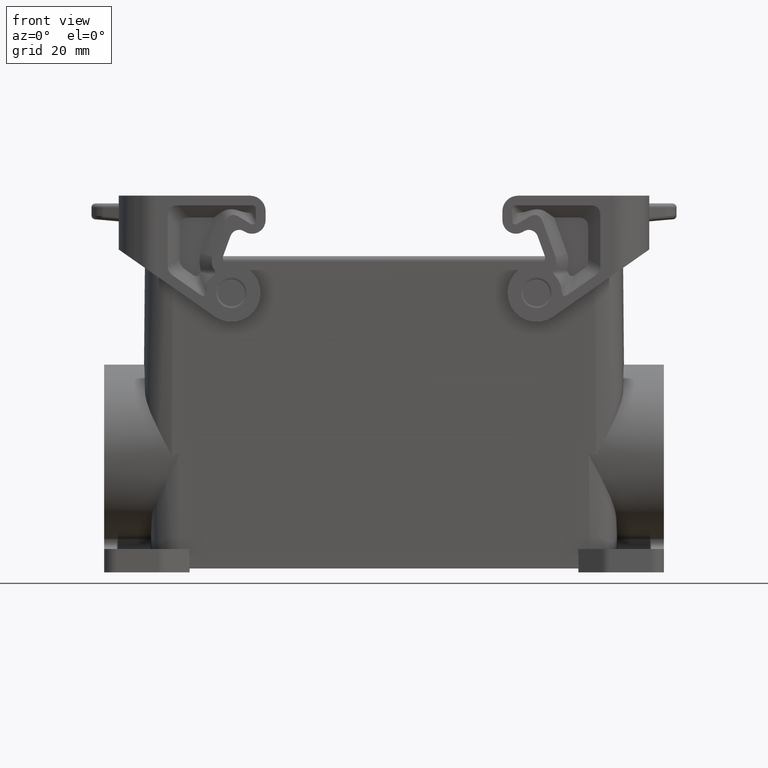
[diagram: clean part render]
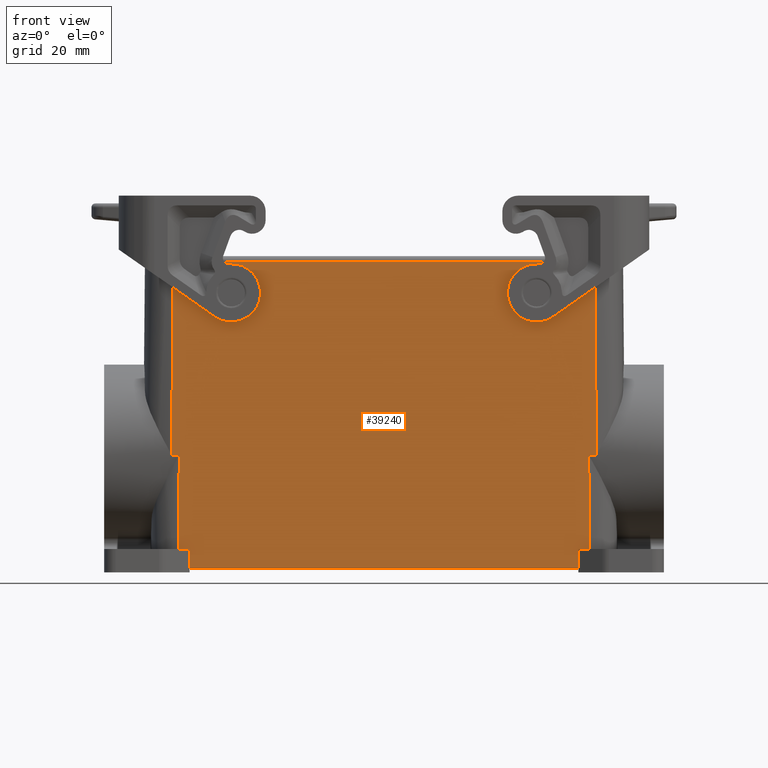
[diagram: same view with one face highlighted and labeled with its STEP entity id]
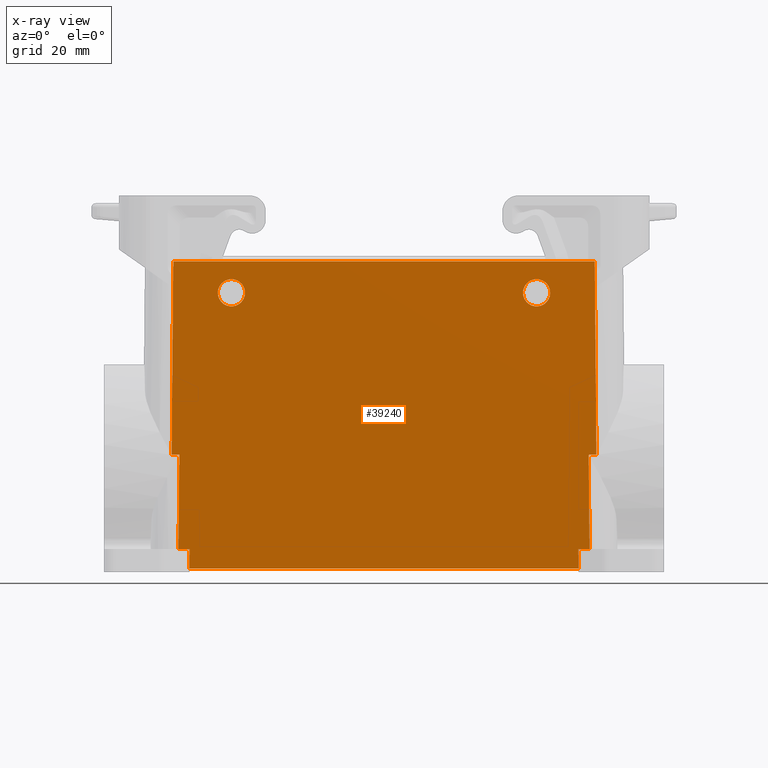
[diagram: x-ray of the same camera — body ghosted, the highlighted face saturated]
A machine part, front view. The second image highlights one B-rep face of the part: STEP entity #39240.
The next image is the same camera in x-ray: the body ghosted, the highlighted face saturated — about 0% of this face is hidden behind the body in this view.
In plain terms, the highlighted planar face has unit normal (0, -1, 0.0087).
Its self-contained STEP definition (entity closure, byte-faithful):
#6460=CARTESIAN_POINT('',(-80.8933790100085,-26.195096704881,
23.4345586552306));
#6470=VERTEX_POINT('',#6460);
#6500=CARTESIAN_POINT('',(-90.554178661523,-26.195096704881,
23.4345586552306));
#6510=DIRECTION('',(-1.,7.64440449054427E-18,3.53977484978518E-16));
#6520=VECTOR('',#6510,1.);
#6530=LINE('',#6500,#6520);
#6540=CARTESIAN_POINT('',(-78.9116760450534,-26.195096704881,
23.4345586552306));
#6550=VERTEX_POINT('',#6540);
#6560=EDGE_CURVE('',#6550,#6470,#6530,.T.);
#11030=CARTESIAN_POINT('',(26.4186720099315,-26.195096704881,
23.4345586552305));
#11040=VERTEX_POINT('',#11030);
#11070=CARTESIAN_POINT('',(24.8207373914753,-26.195096704881,
23.4345586552305));
#11080=DIRECTION('',(1.,3.10297950217462E-15,-2.06865300144974E-15));
#11090=VECTOR('',#11080,1.);
#11100=LINE('',#11070,#11090);
#11110=CARTESIAN_POINT('',(28.4003749748865,-26.195096704881,
23.4345586552305));
#11120=VERTEX_POINT('',#11110);
#11130=EDGE_CURVE('',#11040,#11120,#11100,.T.);
#34600=CARTESIAN_POINT('',(-80.4664058931541,23.600393,23.));
#34610=VERTEX_POINT('',#34600);
#35270=CARTESIAN_POINT('',(27.9734018580322,23.600393,22.9999999999998))
;
#35280=VERTEX_POINT('',#35270);
#35310=CARTESIAN_POINT('',(0.,23.600393,22.9999999999999));
#35320=DIRECTION('',(1.,0.,-1.23007290000708E-15));
#35330=VECTOR('',#35320,1.);
#35340=LINE('',#35310,#35330);
#35350=EDGE_CURVE('',#34610,#35280,#35340,.T.);
#35860=CARTESIAN_POINT('',(0.,-50.399607,23.645788216516));
#35870=DIRECTION('',(1.,-4.93056839856784E-31,-1.23007290000708E-15));
#35880=VECTOR('',#35870,1.);
#35890=LINE('',#35860,#35880);
#35900=CARTESIAN_POINT('',(23.753497982439,-50.399607,23.645788216516));
#35910=VERTEX_POINT('',#35900);
#35920=CARTESIAN_POINT('',(26.6244427383996,-50.399607,23.645788216516))
;
#35930=VERTEX_POINT('',#35920);
#35940=EDGE_CURVE('',#35910,#35930,#35890,.T.);
#37270=CARTESIAN_POINT('',(-61.996502017561,15.5003929999952,
23.0706876291051));
#37280=VERTEX_POINT('',#37270);
#37460=CARTESIAN_POINT('',(-68.996502017561,15.5003929999952,
23.0706876291051));
#37470=VERTEX_POINT('',#37460);
#37500=CARTESIAN_POINT('',(-65.496502017561,15.5003929999952,
23.0706876291051));
#37510=DIRECTION('',(1.2300260626002E-15,0.00872653549837406,
0.999961923064171));
#37520=DIRECTION('',(1.40947026136949E-13,0.999961923064171,
-0.00872653549837406));
#37530=AXIS2_PLACEMENT_3D('',#37500,#37510,#37520);
#37540=ELLIPSE('',#37530,3.50013327435008,3.5);
#37550=EDGE_CURVE('',#37280,#37470,#37540,.T.);
#38110=CARTESIAN_POINT('',(23.1253546349399,0.,23.2059575095208));
#38120=DIRECTION('',(-0.0124618165244914,0.999884274570482,
-0.00872585787023546));
#38130=VECTOR('',#38120,1.);
#38140=LINE('',#38110,#38130);
#38150=CARTESIAN_POINT('',(23.8158142766414,-55.399607,23.6894225554698)
);
#38160=VERTEX_POINT('',#38150);
#38170=EDGE_CURVE('',#38160,#35910,#38140,.T.);
#38440=CARTESIAN_POINT('',(-74.246502017561,1.60123069258823,
23.1919837809642));
#38450=DIRECTION('',(1.2300260626002E-15,0.00872653549837406,
0.999961923064171));
#38460=DIRECTION('',(1.,-1.2064528831792E-31,-1.23007290000708E-15));
#38470=AXIS2_PLACEMENT_3D('',#38440,#38450,#38460);
#38480=PLANE('',#38470);
#38490=EDGE_CURVE('',#37470,#37280,#37540,.T.);
#38500=ORIENTED_EDGE('',*,*,#38490,.F.);
#38510=ORIENTED_EDGE('',*,*,#37550,.F.);
#38520=EDGE_LOOP('',(#38510,#38500));
#38530=FACE_BOUND('',#38520,.T.);
#38540=CARTESIAN_POINT('',(13.003497982439,15.5003929999885,
23.0706876291051));
#38550=DIRECTION('',(1.2300260626002E-15,0.00872653549837406,
0.999961923064171));
#38560=DIRECTION('',(1.40947026136949E-13,0.999961923064171,
-0.00872653549837406));
#38570=AXIS2_PLACEMENT_3D('',#38540,#38550,#38560);
#38580=ELLIPSE('',#38570,3.50013327435008,3.5);
#38590=CARTESIAN_POINT('',(9.50349798243903,15.5003929999885,
23.0706876291051));
#38600=VERTEX_POINT('',#38590);
#38610=CARTESIAN_POINT('',(16.503497982439,15.5003929999885,
23.0706876291051));
#38620=VERTEX_POINT('',#38610);
#38630=EDGE_CURVE('',#38600,#38620,#38580,.T.);
#38640=ORIENTED_EDGE('',*,*,#38630,.F.);
#38650=EDGE_CURVE('',#38620,#38600,#38580,.T.);
#38660=ORIENTED_EDGE('',*,*,#38650,.F.);
#38670=EDGE_LOOP('',(#38660,#38640));
#38680=FACE_BOUND('',#38670,.T.);
#38690=CARTESIAN_POINT('',(-78.6884633472653,0.0610869702035881,
23.2054244116082));
#38700=DIRECTION('',(-0.00850070735926949,-0.999925792774402,
0.00872622019411201));
#38710=VECTOR('',#38700,1.);
#38720=LINE('',#38690,#38710);
#38730=CARTESIAN_POINT('',(-79.1174467735215,-50.399607,23.6457882165161
));
#38740=VERTEX_POINT('',#38730);
#38750=EDGE_CURVE('',#6550,#38740,#38720,.T.);
#38760=ORIENTED_EDGE('',*,*,#38750,.T.);
#38770=ORIENTED_EDGE('',*,*,#6560,.F.);
#38780=CARTESIAN_POINT('',(-80.668244482258,0.0610857484886184,
23.20542442227));
#38790=DIRECTION('',(0.00857389229669481,0.999925167973668,
-0.00872621474155861));
#38800=VECTOR('',#38790,1.);
#38810=LINE('',#38780,#38800);
#38820=EDGE_CURVE('',#6470,#34610,#38810,.T.);
#38830=ORIENTED_EDGE('',*,*,#38820,.F.);
#38840=ORIENTED_EDGE('',*,*,#35350,.F.);
#38850=CARTESIAN_POINT('',(28.1752404471361,0.0610857484886184,
23.2054244222698));
#38860=DIRECTION('',(-0.00857389229669504,0.999925167973668,
-0.00872621474155859));
#38870=VECTOR('',#38860,1.);
#38880=LINE('',#38850,#38870);
#38890=EDGE_CURVE('',#11120,#35280,#38880,.T.);
#38900=ORIENTED_EDGE('',*,*,#38890,.T.);
#38910=ORIENTED_EDGE('',*,*,#11130,.T.);
#38920=CARTESIAN_POINT('',(26.1954593121434,0.0610869702035882,
23.2054244116081));
#38930=DIRECTION('',(-0.00850070735926973,0.999925792774402,
-0.00872622019411199));
#38940=VECTOR('',#38930,1.);
#38950=LINE('',#38920,#38940);
#38960=EDGE_CURVE('',#35930,#11040,#38950,.T.);
#38970=ORIENTED_EDGE('',*,*,#38960,.T.);
#38980=ORIENTED_EDGE('',*,*,#35940,.T.);
#38990=ORIENTED_EDGE('',*,*,#38170,.T.);
#39000=CARTESIAN_POINT('',(0.,-55.399607,23.6894225554698));
#39010=DIRECTION('',(-1.,2.44929359829471E-16,1.22793543386577E-15));
#39020=VECTOR('',#39010,1.);
#39030=LINE('',#39000,#39020);
#39040=CARTESIAN_POINT('',(-76.3088183117634,-55.399607,23.6894225554699
));
#39050=VERTEX_POINT('',#39040);
#39060=EDGE_CURVE('',#38160,#39050,#39030,.T.);
#39070=ORIENTED_EDGE('',*,*,#39060,.F.);
#39080=CARTESIAN_POINT('',(-75.6183586700618,0.,23.2059575095209));
#39090=DIRECTION('',(-0.0124618165244919,-0.999884274570482,
0.00872585787023549));
#39100=VECTOR('',#39090,1.);
#39110=LINE('',#39080,#39100);
#39120=CARTESIAN_POINT('',(-76.246502017561,-50.399607,23.6457882165161)
);
#39130=VERTEX_POINT('',#39120);
#39140=EDGE_CURVE('',#39130,#39050,#39110,.T.);
#39150=ORIENTED_EDGE('',*,*,#39140,.T.);
#39160=CARTESIAN_POINT('',(0.,-50.399607,23.645788216516));
#39170=DIRECTION('',(1.,2.4492935982947E-16,-1.23221036614839E-15));
#39180=VECTOR('',#39170,1.);
#39190=LINE('',#39160,#39180);
#39200=EDGE_CURVE('',#38740,#39130,#39190,.T.);
#39210=ORIENTED_EDGE('',*,*,#39200,.T.);
#39220=EDGE_LOOP('',(#39210,#39150,#39070,#38990,#38980,#38970,#38910,
#38900,#38840,#38830,#38770,#38760));
#39230=FACE_OUTER_BOUND('',#39220,.T.);
#39240=ADVANCED_FACE('',(#38530,#38680,#39230),#38480,.T.);